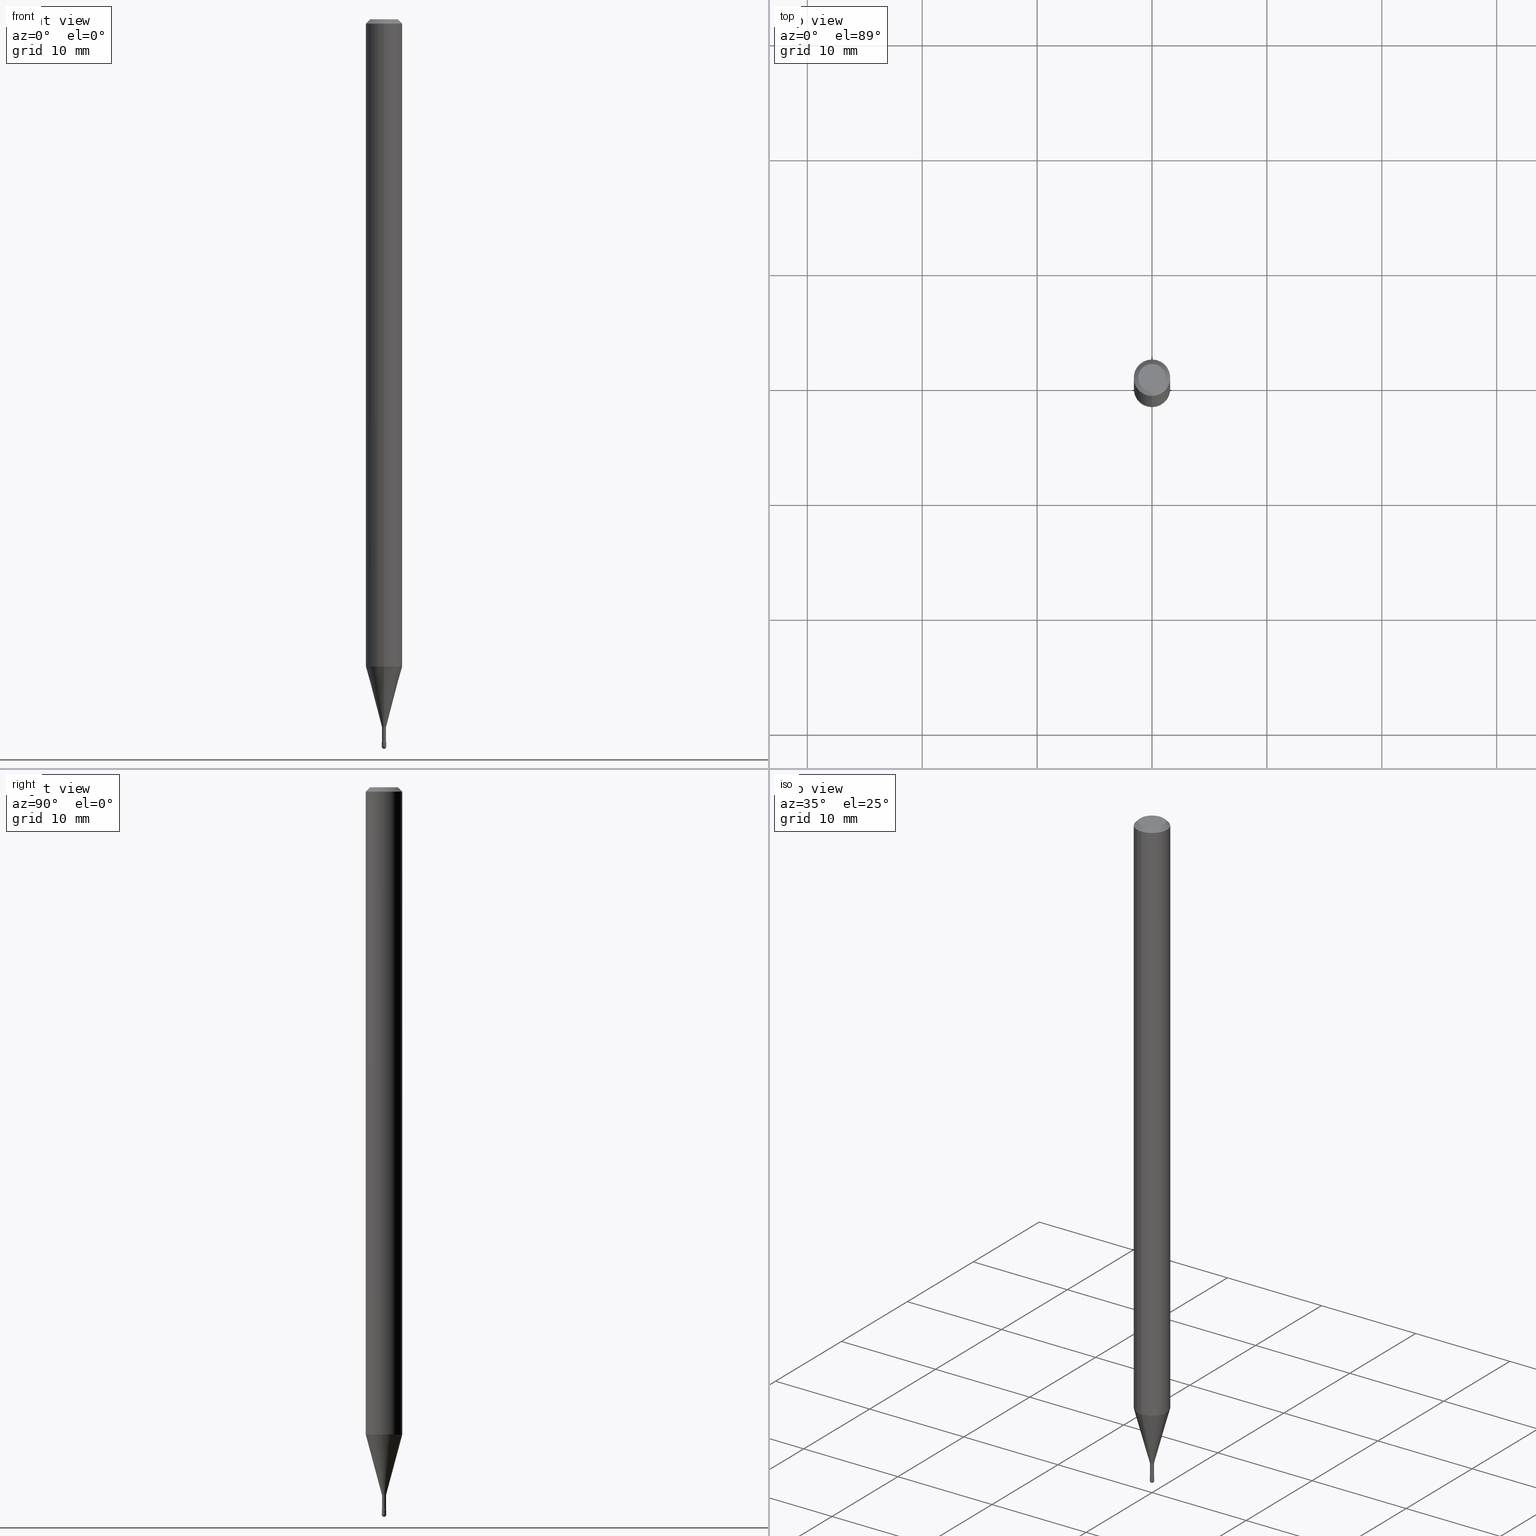
[diagram: canonical four-view strip — front | top / right | iso, engineering-drawing reading convention]
A machine part, canonical four-view strip (front | top / right | iso — engineering-drawing reading convention). The complete STEP part file that produces these views, byte-faithful:
ISO-10303-21;
HEADER;
FILE_DESCRIPTION (( 'STEP AP203' ),
    '1' );
FILE_NAME ('09418.STEP',
    '2024-04-09T22:56:05',
    ( '' ),
    ( '' ),
    'SwSTEP 2.0',
    'SolidWorks 2023',
    '' );
FILE_SCHEMA (( 'CONFIG_CONTROL_DESIGN' ));
ENDSEC;

DATA;
#1 = AXIS2_PLACEMENT_3D ( 'NONE', #174, #489, #100 ) ;
#2 = VERTEX_POINT ( 'NONE', #471 ) ;
#3 = AXIS2_PLACEMENT_3D ( 'NONE', #473, #85, #387 ) ;
#4 = CARTESIAN_POINT ( 'NONE',  ( 6.048426120979777500E-29, -8.635785519289182555E-15, -2.473353426265656907 ) ) ;
#5 = PERSON_AND_ORGANIZATION_ROLE ( 'creator' ) ;
#6 = ORIENTED_EDGE ( 'NONE', *, *, #411, .T. ) ;
#7 = ADVANCED_FACE ( 'NONE', ( #167 ), #517, .T. ) ;
#8 = CARTESIAN_POINT ( 'NONE',  ( 5.935010154055832474E-29, -8.473853151227238457E-15, -2.426974787463811456 ) ) ;
#9 = AXIS2_PLACEMENT_3D ( 'NONE', #8, #401, #479 ) ;
#10 = CC_DESIGN_APPROVAL ( #49, ( #132 ) ) ;
#11 = CARTESIAN_POINT ( 'NONE',  ( 6.095330999416453954E-29, -8.702517237066541600E-15, -2.492500000000000160 ) ) ;
#12 = VERTEX_POINT ( 'NONE', #340 ) ;
#13 = EDGE_CURVE ( 'NONE', #466, #374, #298, .T. ) ;
#14 = CARTESIAN_POINT ( 'NONE',  ( -1.169113584055446105E-44, 1.669184350826100908E-30, 4.780733988912460139E-16 ) ) ;
#15 = PRODUCT_DEFINITION_SHAPE ( 'NONE', 'NONE',  #132 ) ;
#16 = CIRCLE ( 'NONE', #91, 0.007499999999999998855 ) ;
#17 = CIRCLE ( 'NONE', #117, 0.04749999999999999362 ) ;
#18 = LOCAL_TIME ( 18, 56, 5.000000000000000000, #452 ) ;
#19 = CARTESIAN_POINT ( 'NONE',  ( 3.316907271900976096E-16, 0.04749999999999999362, 3.181668494097184723E-17 ) ) ;
#20 = DIRECTION ( 'NONE',  ( 2.445435438683695197E-29, -3.491529123004369972E-15, -1.000000000000000000 ) ) ;
#21 = VERTEX_POINT ( 'NONE', #461 ) ;
#22 = APPLICATION_PROTOCOL_DEFINITION ( 'international standard', 'config_control_design', 1994, #252 ) ;
#23 = ORIENTED_EDGE ( 'NONE', *, *, #144, .F. ) ;
#24 = LINE ( 'NONE', #112, #264 ) ;
#25 = CARTESIAN_POINT ( 'NONE',  ( 6.048508650603792991E-29, -8.635667332170297409E-15, -2.473353426265656907 ) ) ;
#26 = AXIS2_PLACEMENT_3D ( 'NONE', #11, #311, #488 ) ;
#27 = LINE ( 'NONE', #373, #534 ) ;
#28 = VECTOR ( 'NONE', #306, 39.37007874015748143 ) ;
#29 = EDGE_CURVE ( 'NONE', #486, #118, #17, .T. ) ;
#30 = DIRECTION ( 'NONE',  ( -6.982962677686265922E-15, -1.000000000000000000, 0.000000000000000000 ) ) ;
#31 = ORIENTED_EDGE ( 'NONE', *, *, #458, .F. ) ;
#32 = AXIS2_PLACEMENT_3D ( 'NONE', #500, #143, #237 ) ;
#33 = LINE ( 'NONE', #561, #446 ) ;
#34 = VECTOR ( 'NONE', #384, 39.37007874015748143 ) ;
#35 = ORIENTED_EDGE ( 'NONE', *, *, #95, .F. ) ;
#36 = COORDINATED_UNIVERSAL_TIME_OFFSET ( 5, 0, .BEHIND. ) ;
#37 = PERSON_AND_ORGANIZATION ( #514, #204 ) ;
#38 = ADVANCED_FACE ( 'NONE', ( #258 ), #214, .T. ) ;
#39 = VERTEX_POINT ( 'NONE', #119 ) ;
#40 = LINE ( 'NONE', #89, #378 ) ;
#41 = ORIENTED_EDGE ( 'NONE', *, *, #305, .T. ) ;
#42 = DIRECTION ( 'NONE',  ( -2.445468806185136597E-29, 3.491481338843145583E-15, 1.000000000000000000 ) ) ;
#43 = AXIS2_PLACEMENT_3D ( 'NONE', #25, #280, #63 ) ;
#44 = AXIS2_PLACEMENT_3D ( 'NONE', #435, #295, #169 ) ;
#45 = VERTEX_POINT ( 'NONE', #246 ) ;
#46 = PERSON_AND_ORGANIZATION ( #514, #204 ) ;
#47 = APPROVAL ( #193, 'UNSPECIFIED' ) ;
#48 = ORIENTED_EDGE ( 'NONE', *, *, #234, .T. ) ;
#49 = APPROVAL ( #524, 'UNSPECIFIED' ) ;
#50 = DIRECTION ( 'NONE',  ( -2.445468806185136597E-29, 3.491481338843145583E-15, 1.000000000000000000 ) ) ;
#51 = FACE_OUTER_BOUND ( 'NONE', #136, .T. ) ;
#52 = EDGE_CURVE ( 'NONE', #466, #155, #213, .T. ) ;
#53 = CC_DESIGN_PERSON_AND_ORGANIZATION_ASSIGNMENT ( #417, #69, ( #350 ) ) ;
#54 = AXIS2_PLACEMENT_3D ( 'NONE', #182, #368, #61 ) ;
#55 = EDGE_CURVE ( 'NONE', #333, #223, #312, .T. ) ;
#56 = DIRECTION ( 'NONE',  ( -2.445435438683695197E-29, 3.491529123004369972E-15, 1.000000000000000000 ) ) ;
#57 = VERTEX_POINT ( 'NONE', #440 ) ;
#58 = CYLINDRICAL_SURFACE ( 'NONE', #54, 0.007499999999999998855 ) ;
#59 = SPHERICAL_SURFACE ( 'NONE', #429, 0.007499999999999925129 ) ;
#60 = AXIS2_PLACEMENT_3D ( 'NONE', #14, #302, #176 ) ;
#61 = DIRECTION ( 'NONE',  ( 1.000000000000000000, -6.982962677686266711E-15, 4.876176775795935793E-29 ) ) ;
#62 = EDGE_CURVE ( 'NONE', #155, #333, #496, .T. ) ;
#63 = DIRECTION ( 'NONE',  ( -6.982962677686265922E-15, -1.000000000000000000, 3.491529123004369972E-15 ) ) ;
#64 = ORIENTED_EDGE ( 'NONE', *, *, #72, .T. ) ;
#65 = DIRECTION ( 'NONE',  ( 6.982962677686265922E-15, 1.000000000000000000, 0.000000000000000000 ) ) ;
#66 = PERSON_AND_ORGANIZATION_ROLE ( 'design_supplier' ) ;
#67 = CARTESIAN_POINT ( 'NONE',  ( 3.840629472727447874E-16, 0.04749999999999999362, -2.485923956665947374E-16 ) ) ;
#68 = DIRECTION ( 'NONE',  ( -2.445435438683695197E-29, 3.491529123004369972E-15, 1.000000000000000000 ) ) ;
#69 = PERSON_AND_ORGANIZATION_ROLE ( 'classification_officer' ) ;
#70 = AXIS2_PLACEMENT_3D ( 'NONE', #348, #56, #220 ) ;
#71 = AXIS2_PLACEMENT_3D ( 'NONE', #342, #42, #326 ) ;
#72 = EDGE_CURVE ( 'NONE', #142, #12, #199, .T. ) ;
#73 = PLANE ( 'NONE',  #497 ) ;
#74 = CARTESIAN_POINT ( 'NONE',  ( 5.009326287108705583E-17, 0.007050000000000000711, 4.534581185740653024E-16 ) ) ;
#75 = DATE_AND_TIME ( #110, #18 ) ;
#76 = EDGE_LOOP ( 'NONE', ( #383, #316, #396, #205, #299 ) ) ;
#77 = CARTESIAN_POINT ( 'NONE',  ( 5.925516275079333066E-29, -8.460298037723782281E-15, -2.423092501787273534 ) ) ;
#78 = CARTESIAN_POINT ( 'NONE',  ( 0.000000000000000000, 0.000000000000000000, 0.000000000000000000 ) ) ;
#79 = CARTESIAN_POINT ( 'NONE',  ( 6.095330999416453954E-29, -8.702517237066541600E-15, -2.492500000000000160 ) ) ;
#80 = EDGE_CURVE ( 'NONE', #147, #45, #346, .T. ) ;
#81 = AXIS2_PLACEMENT_3D ( 'NONE', #404, #196, #314 ) ;
#82 = EDGE_LOOP ( 'NONE', ( #88, #93, #175, #359, #178 ) ) ;
#83 = CARTESIAN_POINT ( 'NONE',  ( -4.364351673553374845E-16, -0.06250000000000775768, -2.218057782720305848 ) ) ;
#84 = EDGE_LOOP ( 'NONE', ( #106, #509, #286, #556 ) ) ;
#85 = DIRECTION ( 'NONE',  ( -2.438088387897960049E-29, 3.491481338843145188E-15, 1.000000000000000000 ) ) ;
#86 = CALENDAR_DATE ( 2024, 9, 4 ) ;
#87 = EDGE_CURVE ( 'NONE', #267, #21, #171, .T. ) ;
#88 = ORIENTED_EDGE ( 'NONE', *, *, #13, .F. ) ;
#89 = CARTESIAN_POINT ( 'NONE',  ( 5.372493636224590218E-17, 0.007561112605655521436, -2.423092501787273534 ) ) ;
#90 = EDGE_CURVE ( 'NONE', #39, #57, #465, .T. ) ;
#91 = AXIS2_PLACEMENT_3D ( 'NONE', #391, #50, #215 ) ;
#92 = DIRECTION ( 'NONE',  ( -2.445468806185136597E-29, 3.491481338843145583E-15, 1.000000000000000000 ) ) ;
#93 = ORIENTED_EDGE ( 'NONE', *, *, #52, .T. ) ;
#94 = DIRECTION ( 'NONE',  ( -2.445435438683694917E-29, 3.491529123004369972E-15, 1.000000000000000000 ) ) ;
#95 = EDGE_CURVE ( 'NONE', #397, #142, #365, .T. ) ;
#96 = EDGE_CURVE ( 'NONE', #563, #57, #478, .T. ) ;
#97 = AXIS2_PLACEMENT_3D ( 'NONE', #250, #300, #161 ) ;
#98 = ORIENTED_EDGE ( 'NONE', *, *, #166, .F. ) ;
#99 = CARTESIAN_POINT ( 'NONE',  ( 6.057426232920582713E-29, -8.648399276314471045E-15, -2.476999999999999869 ) ) ;
#100 = DIRECTION ( 'NONE',  ( 1.000000000000000000, -6.982962677686269077E-15, 0.000000000000000000 ) ) ;
#101 = ORIENTED_EDGE ( 'NONE', *, *, #513, .F. ) ;
#102 = APPROVAL_DATE_TIME ( #274, #224 ) ;
#103 = DIRECTION ( 'NONE',  ( -1.807323732225327378E-15, -0.2588190451025177974, 0.9659258262890690894 ) ) ;
#104 = DIRECTION ( 'NONE',  ( -6.982962677686265133E-15, -1.000000000000000000, 3.491529123004366422E-15 ) ) ;
#105 = AXIS2_PLACEMENT_3D ( 'NONE', #276, #236, #409 ) ;
#106 = ORIENTED_EDGE ( 'NONE', *, *, #188, .F. ) ;
#107 = CIRCLE ( 'NONE', #522, 0.007499999999999999722 ) ;
#108 = FACE_OUTER_BOUND ( 'NONE', #82, .T. ) ;
#109 = FACE_OUTER_BOUND ( 'NONE', #491, .T. ) ;
#110 = CALENDAR_DATE ( 2024, 9, 4 ) ;
#111 = ORIENTED_EDGE ( 'NONE', *, *, #426, .T. ) ;
#112 = CARTESIAN_POINT ( 'NONE',  ( -5.279896712707547694E-17, -0.007561112605672441929, -2.423092501787273534 ) ) ;
#113 = CARTESIAN_POINT ( 'NONE',  ( 3.668153158025562537E-31, -5.237293684506583702E-17, -0.01500000000000008271 ) ) ;
#114 = EDGE_CURVE ( 'NONE', #397, #57, #195, .T. ) ;
#115 = DIRECTION ( 'NONE',  ( -6.982962677686265922E-15, -1.000000000000000000, 3.491529123004369972E-15 ) ) ;
#116 = TOROIDAL_SURFACE ( 'NONE', #356, 0.02205000000000001750, 0.01500000000000001506 ) ;
#117 = AXIS2_PLACEMENT_3D ( 'NONE', #285, #344, #477 ) ;
#118 = VERTEX_POINT ( 'NONE', #230 ) ;
#119 = CARTESIAN_POINT ( 'NONE',  ( 2.489070731061815457E-16, 0.007561112605655522304, -2.423092501787273534 ) ) ;
#120 = ORIENTED_EDGE ( 'NONE', *, *, #188, .T. ) ;
#121 = DIRECTION ( 'NONE',  ( -6.982962677686265133E-15, -1.000000000000000000, 0.000000000000000000 ) ) ;
#122 = DIRECTION ( 'NONE',  ( -6.982962677686265133E-15, -1.000000000000000000, 3.491529123004366422E-15 ) ) ;
#123 = VERTEX_POINT ( 'NONE', #319 ) ;
#124 = DIRECTION ( 'NONE',  ( -6.982962677686265922E-15, -1.000000000000000000, 3.491529123004369972E-15 ) ) ;
#125 = AXIS2_PLACEMENT_3D ( 'NONE', #457, #191, #358 ) ;
#126 = ORIENTED_EDGE ( 'NONE', *, *, #222, .T. ) ;
#127 = EDGE_LOOP ( 'NONE', ( #41, #126, #329, #332 ) ) ;
#128 = CARTESIAN_POINT ( 'NONE',  ( 6.113992702821284393E-29, -8.728244104558185096E-15, -2.500000000000000000 ) ) ;
#129 = CARTESIAN_POINT ( 'NONE',  ( -1.169113584055446105E-44, 1.669184350826100908E-30, 4.780733988912460139E-16 ) ) ;
#130 = ORIENTED_EDGE ( 'NONE', *, *, #90, .F. ) ;
#131 = FACE_OUTER_BOUND ( 'NONE', #460, .T. ) ;
#132 = PRODUCT_DEFINITION ( 'UNKNOWN', '', #508, #133 ) ;
#133 = DESIGN_CONTEXT ( 'detailed design', #546, 'design' ) ;
#134 = ADVANCED_FACE ( 'NONE', ( #109 ), #277, .F. ) ;
#135 = CARTESIAN_POINT ( 'NONE',  ( 0.007499999999999998855, -5.237222008264699293E-17, 3.657132581846951319E-31 ) ) ;
#136 = EDGE_LOOP ( 'NONE', ( #243, #120, #380, #160 ) ) ;
#137 = DIRECTION ( 'NONE',  ( 1.000000000000000000, -6.982962677686269077E-15, 0.000000000000000000 ) ) ;
#138 = EDGE_CURVE ( 'NONE', #486, #45, #506, .T. ) ;
#139 = DIRECTION ( 'NONE',  ( -6.982962677686265922E-15, -1.000000000000000000, 0.000000000000000000 ) ) ;
#140 = CARTESIAN_POINT ( 'NONE',  ( 1.566746732351614046E-16, 0.02204999999999152777, -2.426974787463811456 ) ) ;
#141 = EDGE_CURVE ( 'NONE', #341, #155, #270, .T. ) ;
#142 = VERTEX_POINT ( 'NONE', #413 ) ;
#143 = DIRECTION ( 'NONE',  ( -2.445435438683695197E-29, 3.491529123004369972E-15, 1.000000000000000000 ) ) ;
#144 = EDGE_CURVE ( 'NONE', #207, #12, #438, .T. ) ;
#145 = CARTESIAN_POINT ( 'NONE',  ( -1.169113584055446105E-44, 1.669184350826100908E-30, 4.780733988912460139E-16 ) ) ;
#146 = CIRCLE ( 'NONE', #70, 0.06250000000000000000 ) ;
#147 = VERTEX_POINT ( 'NONE', #503 ) ;
#148 =( CONVERSION_BASED_UNIT ( 'INCH', #408 ) LENGTH_UNIT ( ) NAMED_UNIT ( #227 ) );
#149 = ADVANCED_FACE ( 'NONE', ( #241 ), #548, .T. ) ;
#150 = DIRECTION ( 'NONE',  ( -2.445435438683695197E-29, 3.491529123004369972E-15, 1.000000000000000000 ) ) ;
#151 = FACE_OUTER_BOUND ( 'NONE', #283, .T. ) ;
#152 = DIRECTION ( 'NONE',  ( -2.445435438683695197E-29, 3.491529123004369972E-15, 1.000000000000000000 ) ) ;
#153 = COORDINATED_UNIVERSAL_TIME_OFFSET ( 5, 0, .BEHIND. ) ;
#154 = APPROVAL_DATE_TIME ( #255, #49 ) ;
#155 = VERTEX_POINT ( 'NONE', #233 ) ;
#156 = DIRECTION ( 'NONE',  ( 2.445435438683695197E-29, -3.491529123004369972E-15, -1.000000000000000000 ) ) ;
#157 = ADVANCED_FACE ( 'NONE', ( #416 ), #162, .T. ) ;
#158 = ORIENTED_EDGE ( 'NONE', *, *, #513, .T. ) ;
#159 = CARTESIAN_POINT ( 'NONE',  ( -4.922988687762769829E-17, -0.007050000000008637899, -2.473353426265656907 ) ) ;
#160 = ORIENTED_EDGE ( 'NONE', *, *, #244, .F. ) ;
#161 = DIRECTION ( 'NONE',  ( -6.982962677686265922E-15, -1.000000000000000000, 0.000000000000000000 ) ) ;
#162 = CONICAL_SURFACE ( 'NONE', #565, 0.06250000000000000000, 0.7853981633974483900 ) ;
#163 = TOROIDAL_SURFACE ( 'NONE', #325, 0.02205000000000000016, 0.01500000000000002373 ) ;
#164 = ORIENTED_EDGE ( 'NONE', *, *, #481, .F. ) ;
#165 = FACE_OUTER_BOUND ( 'NONE', #472, .T. ) ;
#166 = EDGE_CURVE ( 'NONE', #397, #207, #336, .T. ) ;
#167 = FACE_OUTER_BOUND ( 'NONE', #289, .T. ) ;
#168 = AXIS2_PLACEMENT_3D ( 'NONE', #78, #247, #400 ) ;
#169 = DIRECTION ( 'NONE',  ( -6.982962677686265922E-15, -1.000000000000000000, 0.000000000000000000 ) ) ;
#170 = DIRECTION ( 'NONE',  ( -6.982962677686265922E-15, -1.000000000000000000, 3.491529123004369972E-15 ) ) ;
#171 = CIRCLE ( 'NONE', #317, 0.06250000000000000000 ) ;
#172 = TOROIDAL_SURFACE ( 'NONE', #292, 0.02205000000000000016, 0.01500000000000002373 ) ;
#173 = PERSON_AND_ORGANIZATION_ROLE ( 'creator' ) ;
#174 = CARTESIAN_POINT ( 'NONE',  ( 6.095330999416453954E-29, -8.702517237066541600E-15, -2.492500000000000160 ) ) ;
#175 = ORIENTED_EDGE ( 'NONE', *, *, #62, .T. ) ;
#176 = DIRECTION ( 'NONE',  ( -6.982962677686265922E-15, -1.000000000000000000, 3.491529123004369183E-15 ) ) ;
#177 = CC_DESIGN_PERSON_AND_ORGANIZATION_ASSIGNMENT ( #37, #66, ( #508 ) ) ;
#178 = ORIENTED_EDGE ( 'NONE', *, *, #474, .F. ) ;
#179 = CIRCLE ( 'NONE', #259, 0.007499999999999998855 ) ;
#180 = ADVANCED_FACE ( 'NONE', ( #272 ), #59, .T. ) ;
#181 = CARTESIAN_POINT ( 'NONE',  ( 4.364351673553919652E-16, 0.06249999999999995143, -0.01500000000000030129 ) ) ;
#182 = CARTESIAN_POINT ( 'NONE',  ( 0.000000000000000000, 0.000000000000000000, 0.000000000000000000 ) ) ;
#183 = DIRECTION ( 'NONE',  ( 1.000000000000000000, -7.105427357601001070E-15, 4.926316093729283310E-29 ) ) ;
#184 = ORIENTED_EDGE ( 'NONE', *, *, #80, .T. ) ;
#185 = CC_DESIGN_DATE_AND_TIME_ASSIGNMENT ( #554, #291, ( #350 ) ) ;
#186 = DIRECTION ( 'NONE',  ( -6.982962677686265922E-15, -1.000000000000000000, 4.370956789862821150E-15 ) ) ;
#187 = DIRECTION ( 'NONE',  ( 0.000000000000000000, 0.000000000000000000, 1.000000000000000000 ) ) ;
#188 = EDGE_CURVE ( 'NONE', #21, #45, #27, .T. ) ;
#189 = AXIS2_PLACEMENT_3D ( 'NONE', #145, #493, #104 ) ;
#190 = FACE_OUTER_BOUND ( 'NONE', #442, .T. ) ;
#191 = DIRECTION ( 'NONE',  ( -1.000000000000000000, 7.105427357601001070E-15, -4.926315508542082329E-29 ) ) ;
#192 = LOCAL_TIME ( 18, 56, 5.000000000000000000, #153 ) ;
#193 = APPROVAL_STATUS ( 'not_yet_approved' ) ;
#194 = CYLINDRICAL_SURFACE ( 'NONE', #480, 0.06250000000000000000 ) ;
#195 = LINE ( 'NONE', #74, #318 ) ;
#196 = DIRECTION ( 'NONE',  ( -2.445435438683695197E-29, 3.491529123004369972E-15, 1.000000000000000000 ) ) ;
#197 = LINE ( 'NONE', #290, #34 ) ;
#198 = CALENDAR_DATE ( 2024, 9, 4 ) ;
#199 = CIRCLE ( 'NONE', #32, 0.007499999999999999722 ) ;
#200 = ORIENTED_EDGE ( 'NONE', *, *, #362, .T. ) ;
#201 = DIRECTION ( 'NONE',  ( -2.445435438683695197E-29, 3.491529123004369972E-15, 1.000000000000000000 ) ) ;
#202 = MECHANICAL_CONTEXT ( 'NONE', #252, 'mechanical' ) ;
#203 = CIRCLE ( 'NONE', #26, 0.007499999999999925129 ) ;
#204 = ORGANIZATION ( 'UNSPECIFIED', 'UNSPECIFIED', '' ) ;
#205 = ORIENTED_EDGE ( 'NONE', *, *, #55, .F. ) ;
#206 = SPHERICAL_SURFACE ( 'NONE', #507, 0.007499999999999925129 ) ;
#207 = VERTEX_POINT ( 'NONE', #159 ) ;
#208 = ORIENTED_EDGE ( 'NONE', *, *, #141, .F. ) ;
#209 = DIRECTION ( 'NONE',  ( -1.000000000000000000, 6.982962677686265922E-15, -4.883557194083112340E-29 ) ) ;
#210 = ORIENTED_EDGE ( 'NONE', *, *, #234, .F. ) ;
#211 = FACE_OUTER_BOUND ( 'NONE', #518, .T. ) ;
#212 = CIRCLE ( 'NONE', #309, 0.04749999999999999362 ) ;
#213 = CIRCLE ( 'NONE', #560, 0.007499999999999998855 ) ;
#214 = CYLINDRICAL_SURFACE ( 'NONE', #168, 0.007499999999999998855 ) ;
#215 = DIRECTION ( 'NONE',  ( 1.000000000000000000, -6.982962677686269077E-15, 0.000000000000000000 ) ) ;
#216 = CARTESIAN_POINT ( 'NONE',  ( 6.095330999416453954E-29, -8.702517237066541600E-15, -2.492500000000000160 ) ) ;
#217 = AXIS2_PLACEMENT_3D ( 'NONE', #140, #183, #322 ) ;
#218 = VECTOR ( 'NONE', #278, 39.37007874015748143 ) ;
#219 = CC_DESIGN_APPROVAL ( #224, ( #350 ) ) ;
#220 = DIRECTION ( 'NONE',  ( -6.982962677686265922E-15, -1.000000000000000000, 3.483106191921935554E-15 ) ) ;
#221 = ORIENTED_EDGE ( 'NONE', *, *, #29, .F. ) ;
#222 = EDGE_CURVE ( 'NONE', #39, #21, #40, .T. ) ;
#223 = VERTEX_POINT ( 'NONE', #381 ) ;
#224 = APPROVAL ( #389, 'UNSPECIFIED' ) ;
#225 = ORIENTED_EDGE ( 'NONE', *, *, #72, .F. ) ;
#226 = CC_DESIGN_PERSON_AND_ORGANIZATION_ASSIGNMENT ( #470, #516, ( #415 ) ) ;
#227 = DIMENSIONAL_EXPONENTS ( 1.000000000000000000, 0.000000000000000000, 0.000000000000000000, 0.000000000000000000, 0.000000000000000000, 0.000000000000000000, 0.000000000000000000 ) ;
#228 = CONICAL_SURFACE ( 'NONE', #44, 0.007561112605663981683, 0.2617993877991498519 ) ;
#229 = DIRECTION ( 'NONE',  ( -2.445435438683695197E-29, 3.491529123004369972E-15, 1.000000000000000000 ) ) ;
#230 = CARTESIAN_POINT ( 'NONE',  ( -3.773273898774340269E-16, -0.04749999999999999362, 8.310287101882037742E-17 ) ) ;
#231 = EDGE_LOOP ( 'NONE', ( #31, #301, #407, #294 ) ) ;
#232 =( NAMED_UNIT ( * ) PLANE_ANGLE_UNIT ( ) SI_UNIT ( $, .RADIAN. ) );
#233 = CARTESIAN_POINT ( 'NONE',  ( -5.329070518194628897E-17, -0.007500000000008663799, -2.492500000000000160 ) ) ;
#234 = EDGE_CURVE ( 'NONE', #207, #397, #392, .T. ) ;
#235 = ORIENTED_EDGE ( 'NONE', *, *, #29, .T. ) ;
#236 = DIRECTION ( 'NONE',  ( -2.445435438683695197E-29, 3.491529123004369972E-15, 1.000000000000000000 ) ) ;
#237 = DIRECTION ( 'NONE',  ( -6.982962677686265922E-15, -1.000000000000000000, 0.000000000000000000 ) ) ;
#238 = CIRCLE ( 'NONE', #467, 0.007561112605663981683 ) ;
#239 = ADVANCED_FACE ( 'NONE', ( #527 ), #455, .T. ) ;
#240 = CARTESIAN_POINT ( 'NONE',  ( -1.169113584055446105E-44, 1.669184350826100908E-30, 4.780733988912460139E-16 ) ) ;
#241 = FACE_OUTER_BOUND ( 'NONE', #526, .T. ) ;
#242 = CC_DESIGN_DATE_AND_TIME_ASSIGNMENT ( #75, #281, ( #132 ) ) ;
#243 = ORIENTED_EDGE ( 'NONE', *, *, #87, .T. ) ;
#244 = EDGE_CURVE ( 'NONE', #267, #147, #33, .T. ) ;
#245 = DIRECTION ( 'NONE',  ( 6.982962677686265922E-15, 1.000000000000000000, 0.000000000000000000 ) ) ;
#246 = CARTESIAN_POINT ( 'NONE',  ( 4.440892098501171462E-16, 0.06249999999999995143, -0.01500000000000030129 ) ) ;
#247 = DIRECTION ( 'NONE',  ( -2.445468806185136597E-29, 3.491481338843145583E-15, 1.000000000000000000 ) ) ;
#248 = CARTESIAN_POINT ( 'NONE',  ( 5.925516275079333066E-29, -8.460298037723782281E-15, -2.423092501787273534 ) ) ;
#249 = ORIENTED_EDGE ( 'NONE', *, *, #411, .F. ) ;
#250 = CARTESIAN_POINT ( 'NONE',  ( 5.925516275079333066E-29, -8.460298037723782281E-15, -2.423092501787273534 ) ) ;
#251 = EDGE_CURVE ( 'NONE', #39, #2, #555, .T. ) ;
#252 = APPLICATION_CONTEXT ( 'configuration controlled 3d designs of mechanical parts and assemblies' ) ;
#253 = ORIENTED_EDGE ( 'NONE', *, *, #282, .T. ) ;
#254 = CARTESIAN_POINT ( 'NONE',  ( 2.023310220374665440E-45, -2.889285917662965860E-31, -8.274476232388719231E-17 ) ) ;
#255 = DATE_AND_TIME ( #86, #293 ) ;
#256 = ORIENTED_EDGE ( 'NONE', *, *, #499, .F. ) ;
#257 = DIRECTION ( 'NONE',  ( -2.445435438683695197E-29, 3.491529123004369972E-15, 1.000000000000000000 ) ) ;
#258 = FACE_OUTER_BOUND ( 'NONE', #76, .T. ) ;
#259 = AXIS2_PLACEMENT_3D ( 'NONE', #216, #92, #354 ) ;
#260 = ADVANCED_FACE ( 'NONE', ( #463 ), #206, .T. ) ;
#261 = CARTESIAN_POINT ( 'NONE',  ( 5.169198402660787211E-17, 0.007049999999991365257, -2.473353426265656907 ) ) ;
#262 = VECTOR ( 'NONE', #315, 39.37007874015748143 ) ;
#263 = CC_DESIGN_PERSON_AND_ORGANIZATION_ASSIGNMENT ( #335, #173, ( #508 ) ) ;
#264 = VECTOR ( 'NONE', #103, 39.37007874015748143 ) ;
#265 = CARTESIAN_POINT ( 'NONE',  ( 6.095330999416453954E-29, -8.702517237066541600E-15, -2.492500000000000160 ) ) ;
#266 = ADVANCED_FACE ( 'NONE', ( #131 ), #163, .F. ) ;
#267 = VERTEX_POINT ( 'NONE', #83 ) ;
#268 = DIRECTION ( 'NONE',  ( -2.445468806185136597E-29, 3.491481338843145583E-15, 1.000000000000000000 ) ) ;
#269 = DIRECTION ( 'NONE',  ( -6.982962677686265133E-15, -1.000000000000000000, 0.000000000000000000 ) ) ;
#270 = CIRCLE ( 'NONE', #125, 0.007499999999999925129 ) ;
#271 = AXIS2_PLACEMENT_3D ( 'NONE', #456, #549, #139 ) ;
#272 = FACE_OUTER_BOUND ( 'NONE', #231, .T. ) ;
#273 = PERSON_AND_ORGANIZATION ( #514, #204 ) ;
#274 = DATE_AND_TIME ( #537, #469 ) ;
#275 = DIRECTION ( 'NONE',  ( 2.445435438683694917E-29, -3.491529123004369972E-15, -1.000000000000000000 ) ) ;
#276 = CARTESIAN_POINT ( 'NONE',  ( 3.668153158025562537E-31, -5.237293684506583702E-17, -0.01500000000000008271 ) ) ;
#277 = TOROIDAL_SURFACE ( 'NONE', #43, 0.02205000000000001750, 0.01500000000000001506 ) ;
#278 = DIRECTION ( 'NONE',  ( -4.851104656540964275E-15, -0.7071067811865500152, -0.7071067811865450192 ) ) ;
#279 = CIRCLE ( 'NONE', #485, 0.01500000000000002373 ) ;
#280 = DIRECTION ( 'NONE',  ( -2.445435438683695197E-29, 3.491529123004369972E-15, 1.000000000000000000 ) ) ;
#281 = DATE_TIME_ROLE ( 'creation_date' ) ;
#282 = EDGE_CURVE ( 'NONE', #2, #563, #279, .T. ) ;
#283 = EDGE_LOOP ( 'NONE', ( #475, #337, #6, #447 ) ) ;
#284 = DIRECTION ( 'NONE',  ( -2.445435438683695197E-29, 3.491529123004369972E-15, 1.000000000000000000 ) ) ;
#285 = CARTESIAN_POINT ( 'NONE',  ( 2.023310220374665440E-45, -2.889285917662965860E-31, -8.274476232388719231E-17 ) ) ;
#286 = ORIENTED_EDGE ( 'NONE', *, *, #244, .T. ) ;
#287 = FACE_OUTER_BOUND ( 'NONE', #296, .T. ) ;
#288 = CARTESIAN_POINT ( 'NONE',  ( -0.007499999999999998855, 5.329070518200750581E-17, -3.689201317691178390E-31 ) ) ;
#289 = EDGE_LOOP ( 'NONE', ( #433, #390, #422, #249 ) ) ;
#290 = CARTESIAN_POINT ( 'NONE',  ( -4.922988687768817558E-17, -0.007050000000000000711, 5.026886792084268241E-16 ) ) ;
#291 = DATE_TIME_ROLE ( 'classification_date' ) ;
#292 = AXIS2_PLACEMENT_3D ( 'NONE', #492, #505, #115 ) ;
#293 = LOCAL_TIME ( 18, 56, 5.000000000000000000, #36 ) ;
#294 = ORIENTED_EDGE ( 'NONE', *, *, #451, .F. ) ;
#295 = DIRECTION ( 'NONE',  ( -2.445435438683695197E-29, 3.491529123004369972E-15, 1.000000000000000000 ) ) ;
#296 = EDGE_LOOP ( 'NONE', ( #200, #540 ) ) ;
#297 = PLANE ( 'NONE',  #3 ) ;
#298 = LINE ( 'NONE', #288, #535 ) ;
#299 = ORIENTED_EDGE ( 'NONE', *, *, #481, .T. ) ;
#300 = DIRECTION ( 'NONE',  ( -2.445435438683695197E-29, 3.491529123004369972E-15, 1.000000000000000000 ) ) ;
#301 = ORIENTED_EDGE ( 'NONE', *, *, #141, .T. ) ;
#302 = DIRECTION ( 'NONE',  ( -2.445435438683695197E-29, 3.491529123004369972E-15, 1.000000000000000000 ) ) ;
#303 = AXIS2_PLACEMENT_3D ( 'NONE', #375, #156, #552 ) ;
#304 = APPROVAL_PERSON_ORGANIZATION ( #273, #47, #544 ) ;
#305 = EDGE_CURVE ( 'NONE', #2, #39, #238, .T. ) ;
#306 = DIRECTION ( 'NONE',  ( -2.445468806185136877E-29, 3.491481338843145188E-15, 1.000000000000000000 ) ) ;
#307 = ADVANCED_FACE ( 'NONE', ( #165 ), #116, .F. ) ;
#308 = CIRCLE ( 'NONE', #9, 0.007049999999999998976 ) ;
#309 = AXIS2_PLACEMENT_3D ( 'NONE', #254, #476, #431 ) ;
#310 = APPROVAL_PERSON_ORGANIZATION ( #46, #224, #487 ) ;
#311 = DIRECTION ( 'NONE',  ( 1.000000000000000000, -6.982962677686265922E-15, 4.883557194083112340E-29 ) ) ;
#312 = LINE ( 'NONE', #135, #28 ) ;
#313 = MANIFOLD_SOLID_BREP ( 'Body-Move/Copy2[2]', #402 ) ;
#314 = DIRECTION ( 'NONE',  ( -6.982962677686265922E-15, -1.000000000000000000, 4.370956789862821150E-15 ) ) ;
#315 = DIRECTION ( 'NONE',  ( 4.937700262164548042E-15, 0.7071067811865451302, -0.7071067811865499042 ) ) ;
#316 = ORIENTED_EDGE ( 'NONE', *, *, #13, .T. ) ;
#317 = AXIS2_PLACEMENT_3D ( 'NONE', #445, #150, #186 ) ;
#318 = VECTOR ( 'NONE', #361, 39.37007874015748143 ) ;
#319 = CARTESIAN_POINT ( 'NONE',  ( 5.237222008270768592E-17, 0.007499999999991259318, -2.492500000000000160 ) ) ;
#320 = LINE ( 'NONE', #538, #218 ) ;
#321 = CARTESIAN_POINT ( 'NONE',  ( 6.048426120979777500E-29, -8.635785519289182555E-15, -2.473353426265656907 ) ) ;
#322 = DIRECTION ( 'NONE',  ( 7.105427357600999492E-15, 1.000000000000000000, 0.000000000000000000 ) ) ;
#323 = EDGE_CURVE ( 'NONE', #207, #563, #197, .T. ) ;
#324 = ORIENTED_EDGE ( 'NONE', *, *, #138, .F. ) ;
#325 = AXIS2_PLACEMENT_3D ( 'NONE', #334, #201, #379 ) ;
#326 = DIRECTION ( 'NONE',  ( 1.000000000000000000, -6.982962677686268288E-15, 0.000000000000000000 ) ) ;
#327 = CC_DESIGN_SECURITY_CLASSIFICATION ( #350, ( #508 ) ) ;
#328 = DATE_AND_TIME ( #371, #448 ) ;
#329 = ORIENTED_EDGE ( 'NONE', *, *, #87, .F. ) ;
#330 = FACE_OUTER_BOUND ( 'NONE', #494, .T. ) ;
#331 = APPROVAL_DATE_TIME ( #328, #47 ) ;
#332 = ORIENTED_EDGE ( 'NONE', *, *, #531, .F. ) ;
#333 = VERTEX_POINT ( 'NONE', #468 ) ;
#334 = CARTESIAN_POINT ( 'NONE',  ( 5.935091136140551956E-29, -8.473737180272706087E-15, -2.426974787463811456 ) ) ;
#335 = PERSON_AND_ORGANIZATION ( #514, #204 ) ;
#336 = CIRCLE ( 'NONE', #394, 0.007050000000000001578 ) ;
#337 = ORIENTED_EDGE ( 'NONE', *, *, #90, .T. ) ;
#338 = DIRECTION ( 'NONE',  ( -6.982962677686266711E-15, -1.000000000000000000, 0.000000000000000000 ) ) ;
#339 = CIRCLE ( 'NONE', #71, 0.007499999999999999722 ) ;
#340 = CARTESIAN_POINT ( 'NONE',  ( -5.237222008258650333E-17, -0.007500000000008657727, -2.476999999999999869 ) ) ;
#341 = VERTEX_POINT ( 'NONE', #128 ) ;
#342 = CARTESIAN_POINT ( 'NONE',  ( 6.057426232920582713E-29, -8.648399276314471045E-15, -2.476999999999999869 ) ) ;
#343 = APPROVAL_ROLE ( '' ) ;
#344 = DIRECTION ( 'NONE',  ( -2.445435438683695197E-29, 3.491529123004369972E-15, 1.000000000000000000 ) ) ;
#345 = ADVANCED_FACE ( 'NONE', ( #287 ), #297, .T. ) ;
#346 = CIRCLE ( 'NONE', #105, 0.06250000000000000000 ) ;
#347 = AXIS2_PLACEMENT_3D ( 'NONE', #542, #539, #370 ) ;
#348 = CARTESIAN_POINT ( 'NONE',  ( 3.668153158025562537E-31, -5.237293684506583702E-17, -0.01500000000000008271 ) ) ;
#349 = AXIS2_PLACEMENT_3D ( 'NONE', #4, #284, #121 ) ;
#350 = SECURITY_CLASSIFICATION ( '', '', #504 ) ;
#351 = EDGE_CURVE ( 'NONE', #118, #486, #212, .T. ) ;
#352 = FACE_OUTER_BOUND ( 'NONE', #427, .T. ) ;
#353 = ORIENTED_EDGE ( 'NONE', *, *, #531, .T. ) ;
#354 = DIRECTION ( 'NONE',  ( 1.000000000000000000, -6.982962677686269077E-15, 0.000000000000000000 ) ) ;
#355 = DIRECTION ( 'NONE',  ( -2.445468806185136597E-29, 3.491481338843145583E-15, 1.000000000000000000 ) ) ;
#356 = AXIS2_PLACEMENT_3D ( 'NONE', #520, #523, #124 ) ;
#357 = CC_DESIGN_APPROVAL ( #47, ( #508 ) ) ;
#358 = DIRECTION ( 'NONE',  ( -7.105427357601001070E-15, -1.000000000000000000, 0.000000000000000000 ) ) ;
#359 = ORIENTED_EDGE ( 'NONE', *, *, #55, .T. ) ;
#360 = DIRECTION ( 'NONE',  ( 6.982962677686265922E-15, 1.000000000000000000, -3.491529123004369972E-15 ) ) ;
#361 = DIRECTION ( 'NONE',  ( -2.445435438683695197E-29, 3.491529123004369972E-15, 1.000000000000000000 ) ) ;
#362 = EDGE_CURVE ( 'NONE', #223, #374, #339, .T. ) ;
#363 = ORIENTED_EDGE ( 'NONE', *, *, #222, .F. ) ;
#364 = DIRECTION ( 'NONE',  ( 7.105427357601001859E-15, 1.000000000000000000, 0.000000000000000000 ) ) ;
#365 = CIRCLE ( 'NONE', #437, 0.01500000000000001506 ) ;
#366 = DIRECTION ( 'NONE',  ( 1.000000000000000000, 0.000000000000000000, 0.000000000000000000 ) ) ;
#367 = AXIS2_PLACEMENT_3D ( 'NONE', #129, #566, #122 ) ;
#368 = DIRECTION ( 'NONE',  ( -2.445468806185136597E-29, 3.491481338843145583E-15, 1.000000000000000000 ) ) ;
#369 = AXIS2_PLACEMENT_3D ( 'NONE', #414, #187, #366 ) ;
#370 = DIRECTION ( 'NONE',  ( -6.982962677686265133E-15, -1.000000000000000000, 0.000000000000000000 ) ) ;
#371 = CALENDAR_DATE ( 2024, 9, 4 ) ;
#372 = ADVANCED_FACE ( 'NONE', ( #211 ), #529, .T. ) ;
#373 = CARTESIAN_POINT ( 'NONE',  ( 4.440892098500625669E-16, 0.06250000000000000000, 2.598528287034729400E-16 ) ) ;
#374 = VERTEX_POINT ( 'NONE', #420 ) ;
#375 = CARTESIAN_POINT ( 'NONE',  ( 3.668153158025562537E-31, -5.237293684506583702E-17, -0.01500000000000008271 ) ) ;
#376 = PRODUCT_RELATED_PRODUCT_CATEGORY ( 'detail', '', ( #415 ) ) ;
#377 = EDGE_LOOP ( 'NONE', ( #502, #551, #184, #324 ) ) ;
#378 = VECTOR ( 'NONE', #515, 39.37007874015748854 ) ;
#379 = DIRECTION ( 'NONE',  ( -6.982962677686265922E-15, -1.000000000000000000, 3.491529123004369972E-15 ) ) ;
#380 = ORIENTED_EDGE ( 'NONE', *, *, #80, .F. ) ;
#381 = CARTESIAN_POINT ( 'NONE',  ( 0.007499999999999999722, -8.700771496397117730E-15, -2.476999999999999869 ) ) ;
#382 = ORIENTED_EDGE ( 'NONE', *, *, #351, .T. ) ;
#383 = ORIENTED_EDGE ( 'NONE', *, *, #451, .T. ) ;
#384 = DIRECTION ( 'NONE',  ( -2.445435438683695197E-29, 3.491529123004369972E-15, 1.000000000000000000 ) ) ;
#385 = ORIENTED_EDGE ( 'NONE', *, *, #144, .T. ) ;
#386 = ORIENTED_EDGE ( 'NONE', *, *, #458, .T. ) ;
#387 = DIRECTION ( 'NONE',  ( 1.000000000000000000, -6.982962677686265922E-15, 4.876176775795935793E-29 ) ) ;
#388 = ADVANCED_FACE ( 'NONE', ( #330 ), #228, .T. ) ;
#389 = APPROVAL_STATUS ( 'not_yet_approved' ) ;
#390 = ORIENTED_EDGE ( 'NONE', *, *, #166, .T. ) ;
#391 = CARTESIAN_POINT ( 'NONE',  ( 6.095330999416453954E-29, -8.702517237066541600E-15, -2.492500000000000160 ) ) ;
#392 = CIRCLE ( 'NONE', #349, 0.007050000000000001578 ) ;
#393 = ORIENTED_EDGE ( 'NONE', *, *, #62, .F. ) ;
#394 = AXIS2_PLACEMENT_3D ( 'NONE', #321, #68, #269 ) ;
#395 = MANIFOLD_SOLID_BREP ( 'Body-Move/Copy2[1]', #454 ) ;
#396 = ORIENTED_EDGE ( 'NONE', *, *, #362, .F. ) ;
#397 = VERTEX_POINT ( 'NONE', #261 ) ;
#398 = ORIENTED_EDGE ( 'NONE', *, *, #95, .T. ) ;
#399 = COORDINATED_UNIVERSAL_TIME_OFFSET ( 5, 0, .BEHIND. ) ;
#400 = DIRECTION ( 'NONE',  ( 1.000000000000000000, -6.982962677686266711E-15, 4.876176775795935793E-29 ) ) ;
#401 = DIRECTION ( 'NONE',  ( -2.445435438683695197E-29, 3.491529123004369972E-15, 1.000000000000000000 ) ) ;
#402 = CLOSED_SHELL ( 'NONE', ( #519, #149, #307, #157, #432, #239, #388, #484, #372, #533, #405, #134, #7, #266 ) ) ;
#403 = CIRCLE ( 'NONE', #81, 0.06250000000000000000 ) ;
#404 = CARTESIAN_POINT ( 'NONE',  ( 5.424117106912415965E-29, -7.744413344874448194E-15, -2.218057782720306292 ) ) ;
#405 = ADVANCED_FACE ( 'NONE', ( #352 ), #439, .F. ) ;
#406 = DIRECTION ( 'NONE',  ( -2.445435438683695197E-29, 3.491529123004369972E-15, 1.000000000000000000 ) ) ;
#407 = ORIENTED_EDGE ( 'NONE', *, *, #52, .F. ) ;
#408 = LENGTH_MEASURE_WITH_UNIT ( LENGTH_MEASURE( 0.02539999999999999897 ), #547 );
#409 = DIRECTION ( 'NONE',  ( -6.982962677686265922E-15, -1.000000000000000000, 3.483106191921935554E-15 ) ) ;
#410 = DIRECTION ( 'NONE',  ( 1.000000000000000000, -7.105427357601001070E-15, 4.926316093729283310E-29 ) ) ;
#411 = EDGE_CURVE ( 'NONE', #57, #563, #308, .T. ) ;
#412 = AXIS2_PLACEMENT_3D ( 'NONE', #248, #257, #424 ) ;
#413 = CARTESIAN_POINT ( 'NONE',  ( 5.329070518206812484E-17, 0.007499999999991359932, -2.476999999999999869 ) ) ;
#414 = CARTESIAN_POINT ( 'NONE',  ( 0.000000000000000000, 0.000000000000000000, 0.000000000000000000 ) ) ;
#415 = PRODUCT ( '09418', '09418', '', ( #202 ) ) ;
#416 = FACE_OUTER_BOUND ( 'NONE', #377, .T. ) ;
#417 = PERSON_AND_ORGANIZATION ( #514, #204 ) ;
#418 = COORDINATED_UNIVERSAL_TIME_OFFSET ( 5, 0, .BEHIND. ) ;
#419 = ORIENTED_EDGE ( 'NONE', *, *, #305, .F. ) ;
#420 = CARTESIAN_POINT ( 'NONE',  ( -0.007500000000000001457, -8.622167551508499156E-15, -2.476999999999999869 ) ) ;
#421 = ADVANCED_BREP_SHAPE_REPRESENTATION ( '09418', ( #395, #313, #369 ), #441 ) ;
#422 = ORIENTED_EDGE ( 'NONE', *, *, #323, .T. ) ;
#423 = CIRCLE ( 'NONE', #271, 0.007499999999999999722 ) ;
#424 = DIRECTION ( 'NONE',  ( -6.982962677686265922E-15, -1.000000000000000000, 0.000000000000000000 ) ) ;
#425 = PERSON_AND_ORGANIZATION ( #514, #204 ) ;
#426 = EDGE_CURVE ( 'NONE', #45, #147, #146, .T. ) ;
#427 = EDGE_LOOP ( 'NONE', ( #101, #225 ) ) ;
#428 = CARTESIAN_POINT ( 'NONE',  ( -1.539743270429227997E-16, -0.02205000000000847254, -2.426974787463811456 ) ) ;
#429 = AXIS2_PLACEMENT_3D ( 'NONE', #449, #450, #65 ) ;
#430 = ORIENTED_EDGE ( 'NONE', *, *, #251, .T. ) ;
#431 = DIRECTION ( 'NONE',  ( -6.982962677686266711E-15, -1.000000000000000000, 3.491529123004370367E-15 ) ) ;
#432 = ADVANCED_FACE ( 'NONE', ( #51 ), #443, .T. ) ;
#433 = ORIENTED_EDGE ( 'NONE', *, *, #114, .F. ) ;
#434 = AXIS2_PLACEMENT_3D ( 'NONE', #482, #94, #170 ) ;
#435 = CARTESIAN_POINT ( 'NONE',  ( 5.925516275079333066E-29, -8.460298037723782281E-15, -2.423092501787273534 ) ) ;
#436 = CARTESIAN_POINT ( 'NONE',  ( -0.007499999999999998855, -8.622167551508499156E-15, -2.492500000000000160 ) ) ;
#437 = AXIS2_PLACEMENT_3D ( 'NONE', #453, #410, #364 ) ;
#438 = CIRCLE ( 'NONE', #347, 0.01500000000000001506 ) ;
#439 = PLANE ( 'NONE',  #434 ) ;
#440 = CARTESIAN_POINT ( 'NONE',  ( 5.009326287114754543E-17, 0.007049999999991524852, -2.426974787463811456 ) ) ;
#441 =( GEOMETRIC_REPRESENTATION_CONTEXT ( 3 ) GLOBAL_UNCERTAINTY_ASSIGNED_CONTEXT ( ( #536 ) ) GLOBAL_UNIT_ASSIGNED_CONTEXT ( ( #148, #232, #543 ) ) REPRESENTATION_CONTEXT ( 'NONE', 'WORKASPACE' ) );
#442 = EDGE_LOOP ( 'NONE', ( #235, #382 ) ) ;
#443 = CYLINDRICAL_SURFACE ( 'NONE', #60, 0.06250000000000000000 ) ;
#444 = DIRECTION ( 'NONE',  ( -6.982962677686265922E-15, -1.000000000000000000, 3.491529123004369183E-15 ) ) ;
#445 = CARTESIAN_POINT ( 'NONE',  ( 5.424117106912415965E-29, -7.744413344874448194E-15, -2.218057782720306292 ) ) ;
#446 = VECTOR ( 'NONE', #557, 39.37007874015748143 ) ;
#447 = ORIENTED_EDGE ( 'NONE', *, *, #282, .F. ) ;
#448 = LOCAL_TIME ( 18, 56, 5.000000000000000000, #418 ) ;
#449 = CARTESIAN_POINT ( 'NONE',  ( 6.095330999416453954E-29, -8.702517237066541600E-15, -2.492500000000000160 ) ) ;
#450 = DIRECTION ( 'NONE',  ( -1.000000000000000000, 6.982962677686265922E-15, -4.883557194083112901E-29 ) ) ;
#451 = EDGE_CURVE ( 'NONE', #123, #466, #179, .T. ) ;
#452 = COORDINATED_UNIVERSAL_TIME_OFFSET ( 5, 0, .BEHIND. ) ;
#453 = CARTESIAN_POINT ( 'NONE',  ( 1.566746732351626618E-16, 0.02204999999999138205, -2.473353426265656907 ) ) ;
#454 = CLOSED_SHELL ( 'NONE', ( #38, #180, #345, #260, #562 ) ) ;
#455 = CONICAL_SURFACE ( 'NONE', #97, 0.007561112605663981683, 0.2617993877991498519 ) ;
#456 = CARTESIAN_POINT ( 'NONE',  ( 6.057343581619512225E-29, -8.648517637681823363E-15, -2.476999999999999869 ) ) ;
#457 = CARTESIAN_POINT ( 'NONE',  ( 6.095330999416453954E-29, -8.702517237066541600E-15, -2.492500000000000160 ) ) ;
#458 = EDGE_CURVE ( 'NONE', #341, #123, #203, .T. ) ;
#459 = SHAPE_DEFINITION_REPRESENTATION ( #15, #421 ) ;
#460 = EDGE_LOOP ( 'NONE', ( #130, #419, #253, #525 ) ) ;
#461 = CARTESIAN_POINT ( 'NONE',  ( 4.440892098501166531E-16, 0.06249999999999225619, -2.218057782720306736 ) ) ;
#462 = EDGE_LOOP ( 'NONE', ( #208, #386, #164, #393 ) ) ;
#463 = FACE_OUTER_BOUND ( 'NONE', #462, .T. ) ;
#464 = APPLICATION_PROTOCOL_DEFINITION ( 'international standard', 'config_control_design', 1994, #546 ) ;
#465 = CIRCLE ( 'NONE', #217, 0.01500000000000002373 ) ;
#466 = VERTEX_POINT ( 'NONE', #436 ) ;
#467 = AXIS2_PLACEMENT_3D ( 'NONE', #77, #510, #30 ) ;
#468 = CARTESIAN_POINT ( 'NONE',  ( 0.007499999999999998855, -8.727830476773153796E-15, -2.492500000000000160 ) ) ;
#469 = LOCAL_TIME ( 18, 56, 5.000000000000000000, #399 ) ;
#470 = PERSON_AND_ORGANIZATION ( #514, #204 ) ;
#471 = CARTESIAN_POINT ( 'NONE',  ( -5.279896712707547694E-17, -0.007561112605672441929, -2.423092501787273534 ) ) ;
#472 = EDGE_LOOP ( 'NONE', ( #98, #398, #64, #23 ) ) ;
#473 = CARTESIAN_POINT ( 'NONE',  ( 6.057426232920582713E-29, -8.648399276314471045E-15, -2.476999999999999869 ) ) ;
#474 = EDGE_CURVE ( 'NONE', #374, #223, #107, .T. ) ;
#475 = ORIENTED_EDGE ( 'NONE', *, *, #251, .F. ) ;
#476 = DIRECTION ( 'NONE',  ( -2.445435438683695197E-29, 3.491529123004369972E-15, 1.000000000000000000 ) ) ;
#477 = DIRECTION ( 'NONE',  ( -6.982962677686266711E-15, -1.000000000000000000, 3.491529123004370367E-15 ) ) ;
#478 = CIRCLE ( 'NONE', #553, 0.007049999999999998976 ) ;
#479 = DIRECTION ( 'NONE',  ( -6.982962677686265922E-15, -1.000000000000000000, 0.000000000000000000 ) ) ;
#480 = AXIS2_PLACEMENT_3D ( 'NONE', #240, #229, #444 ) ;
#481 = EDGE_CURVE ( 'NONE', #333, #123, #16, .T. ) ;
#482 = CARTESIAN_POINT ( 'NONE',  ( 5.237222008270756882E-17, 0.007499999999991352126, -2.476999999999999869 ) ) ;
#483 = ORIENTED_EDGE ( 'NONE', *, *, #114, .T. ) ;
#484 = ADVANCED_FACE ( 'NONE', ( #498 ), #194, .T. ) ;
#485 = AXIS2_PLACEMENT_3D ( 'NONE', #428, #209, #338 ) ;
#486 = VERTEX_POINT ( 'NONE', #67 ) ;
#487 = APPROVAL_ROLE ( '' ) ;
#488 = DIRECTION ( 'NONE',  ( 6.982962677686266711E-15, 1.000000000000000000, 0.000000000000000000 ) ) ;
#489 = DIRECTION ( 'NONE',  ( -2.445468806185136597E-29, 3.491481338843145583E-15, 1.000000000000000000 ) ) ;
#490 = EDGE_CURVE ( 'NONE', #21, #267, #403, .T. ) ;
#491 = EDGE_LOOP ( 'NONE', ( #35, #210, #385, #158 ) ) ;
#492 = CARTESIAN_POINT ( 'NONE',  ( 5.935091136140551956E-29, -8.473737180272706087E-15, -2.426974787463811456 ) ) ;
#493 = DIRECTION ( 'NONE',  ( -2.445435438683695197E-29, 3.491529123004369972E-15, 1.000000000000000000 ) ) ;
#494 = EDGE_LOOP ( 'NONE', ( #363, #430, #353, #558 ) ) ;
#495 = DIRECTION ( 'NONE',  ( 6.982962677686265922E-15, 1.000000000000000000, -3.483106191921935554E-15 ) ) ;
#496 = CIRCLE ( 'NONE', #1, 0.007499999999999998855 ) ;
#497 = AXIS2_PLACEMENT_3D ( 'NONE', #19, #275, #360 ) ;
#498 = FACE_OUTER_BOUND ( 'NONE', #84, .T. ) ;
#499 = EDGE_CURVE ( 'NONE', #118, #147, #320, .T. ) ;
#500 = CARTESIAN_POINT ( 'NONE',  ( 6.057343581619512225E-29, -8.648517637681823363E-15, -2.476999999999999869 ) ) ;
#501 = CC_DESIGN_PERSON_AND_ORGANIZATION_ASSIGNMENT ( #511, #5, ( #132 ) ) ;
#502 = ORIENTED_EDGE ( 'NONE', *, *, #351, .F. ) ;
#503 = CARTESIAN_POINT ( 'NONE',  ( -4.364351673553912750E-16, -0.06250000000000005551, -0.01499999999999986587 ) ) ;
#504 = SECURITY_CLASSIFICATION_LEVEL ( 'unclassified' ) ;
#505 = DIRECTION ( 'NONE',  ( -2.445435438683695197E-29, 3.491529123004369972E-15, 1.000000000000000000 ) ) ;
#506 = LINE ( 'NONE', #181, #262 ) ;
#507 = AXIS2_PLACEMENT_3D ( 'NONE', #79, #564, #245 ) ;
#508 = PRODUCT_DEFINITION_FORMATION_WITH_SPECIFIED_SOURCE ( 'ANY', '', #415, .NOT_KNOWN. ) ;
#509 = ORIENTED_EDGE ( 'NONE', *, *, #490, .T. ) ;
#510 = DIRECTION ( 'NONE',  ( -2.445435438683695197E-29, 3.491529123004369972E-15, 1.000000000000000000 ) ) ;
#511 = PERSON_AND_ORGANIZATION ( #514, #204 ) ;
#512 = DIRECTION ( 'NONE',  ( -2.445468806185136877E-29, 3.491481338843145188E-15, 1.000000000000000000 ) ) ;
#513 = EDGE_CURVE ( 'NONE', #12, #142, #423, .T. ) ;
#514 = PERSON ( 'UNSPECIFIED', 'UNSPECIFIED', 'UNSPECIFIED', ('UNSPECIFIED'), ('UNSPECIFIED'), ('UNSPECIFIED') ) ;
#515 = DIRECTION ( 'NONE',  ( 1.839019923739597160E-15, 0.2588190451025245142, 0.9659258262890670910 ) ) ;
#516 = PERSON_AND_ORGANIZATION_ROLE ( 'design_owner' ) ;
#517 = CYLINDRICAL_SURFACE ( 'NONE', #367, 0.007050000000000000711 ) ;
#518 = EDGE_LOOP ( 'NONE', ( #256, #221, #521, #111 ) ) ;
#519 = ADVANCED_FACE ( 'NONE', ( #151 ), #172, .F. ) ;
#520 = CARTESIAN_POINT ( 'NONE',  ( 6.048508650603792991E-29, -8.635667332170297409E-15, -2.473353426265656907 ) ) ;
#521 = ORIENTED_EDGE ( 'NONE', *, *, #138, .T. ) ;
#522 = AXIS2_PLACEMENT_3D ( 'NONE', #99, #268, #528 ) ;
#523 = DIRECTION ( 'NONE',  ( -2.445435438683695197E-29, 3.491529123004369972E-15, 1.000000000000000000 ) ) ;
#524 = APPROVAL_STATUS ( 'not_yet_approved' ) ;
#525 = ORIENTED_EDGE ( 'NONE', *, *, #96, .T. ) ;
#526 = EDGE_LOOP ( 'NONE', ( #48, #483, #532, #559 ) ) ;
#527 = FACE_OUTER_BOUND ( 'NONE', #127, .T. ) ;
#528 = DIRECTION ( 'NONE',  ( 1.000000000000000000, -6.982962677686268288E-15, 0.000000000000000000 ) ) ;
#529 = CONICAL_SURFACE ( 'NONE', #303, 0.06250000000000000000, 0.7853981633974483900 ) ;
#530 = APPROVAL_PERSON_ORGANIZATION ( #425, #49, #343 ) ;
#531 = EDGE_CURVE ( 'NONE', #2, #267, #24, .T. ) ;
#532 = ORIENTED_EDGE ( 'NONE', *, *, #96, .F. ) ;
#533 = ADVANCED_FACE ( 'NONE', ( #190 ), #73, .F. ) ;
#534 = VECTOR ( 'NONE', #152, 39.37007874015748143 ) ;
#535 = VECTOR ( 'NONE', #512, 39.37007874015748143 ) ;
#536 = UNCERTAINTY_MEASURE_WITH_UNIT (LENGTH_MEASURE( 1.000000000000000082E-05 ), #148, 'distance_accuracy_value', 'NONE');
#537 = CALENDAR_DATE ( 2024, 9, 4 ) ;
#538 = CARTESIAN_POINT ( 'NONE',  ( -4.287811248607203282E-16, -0.06250000000000005551, -0.01499999999999986587 ) ) ;
#539 = DIRECTION ( 'NONE',  ( -1.000000000000000000, 6.982962677686265922E-15, -4.883557194083112340E-29 ) ) ;
#540 = ORIENTED_EDGE ( 'NONE', *, *, #474, .T. ) ;
#541 = CARTESIAN_POINT ( 'NONE',  ( -4.922988687762881996E-17, -0.007050000000008473100, -2.426974787463811456 ) ) ;
#542 = CARTESIAN_POINT ( 'NONE',  ( -1.539743270429218136E-16, -0.02205000000000865296, -2.473353426265656907 ) ) ;
#543 =( NAMED_UNIT ( * ) SI_UNIT ( $, .STERADIAN. ) SOLID_ANGLE_UNIT ( ) );
#544 = APPROVAL_ROLE ( '' ) ;
#545 = CARTESIAN_POINT ( 'NONE',  ( 5.935010154055832474E-29, -8.473853151227238457E-15, -2.426974787463811456 ) ) ;
#546 = APPLICATION_CONTEXT ( 'configuration controlled 3d designs of mechanical parts and assemblies' ) ;
#547 =( LENGTH_UNIT ( ) NAMED_UNIT ( * ) SI_UNIT ( $, .METRE. ) );
#548 = CYLINDRICAL_SURFACE ( 'NONE', #189, 0.007050000000000000711 ) ;
#549 = DIRECTION ( 'NONE',  ( -2.445435438683695197E-29, 3.491529123004369972E-15, 1.000000000000000000 ) ) ;
#550 = DIRECTION ( 'NONE',  ( -6.982962677686265922E-15, -1.000000000000000000, 0.000000000000000000 ) ) ;
#551 = ORIENTED_EDGE ( 'NONE', *, *, #499, .T. ) ;
#552 = DIRECTION ( 'NONE',  ( 6.982962677686265922E-15, 1.000000000000000000, -3.483106191921935554E-15 ) ) ;
#553 = AXIS2_PLACEMENT_3D ( 'NONE', #545, #406, #550 ) ;
#554 = DATE_AND_TIME ( #198, #192 ) ;
#555 = CIRCLE ( 'NONE', #412, 0.007561112605663981683 ) ;
#556 = ORIENTED_EDGE ( 'NONE', *, *, #426, .F. ) ;
#557 = DIRECTION ( 'NONE',  ( -2.445435438683695197E-29, 3.491529123004369972E-15, 1.000000000000000000 ) ) ;
#558 = ORIENTED_EDGE ( 'NONE', *, *, #490, .F. ) ;
#559 = ORIENTED_EDGE ( 'NONE', *, *, #323, .F. ) ;
#560 = AXIS2_PLACEMENT_3D ( 'NONE', #265, #355, #137 ) ;
#561 = CARTESIAN_POINT ( 'NONE',  ( -4.364351673553916201E-16, -0.06250000000000000000, 6.962939690790190879E-16 ) ) ;
#562 = ADVANCED_FACE ( 'NONE', ( #108 ), #58, .T. ) ;
#563 = VERTEX_POINT ( 'NONE', #541 ) ;
#564 = DIRECTION ( 'NONE',  ( -1.000000000000000000, 6.982962677686265922E-15, -4.883557194083112901E-29 ) ) ;
#565 = AXIS2_PLACEMENT_3D ( 'NONE', #113, #20, #495 ) ;
#566 = DIRECTION ( 'NONE',  ( -2.445435438683695197E-29, 3.491529123004369972E-15, 1.000000000000000000 ) ) ;
ENDSEC;
END-ISO-10303-21;
